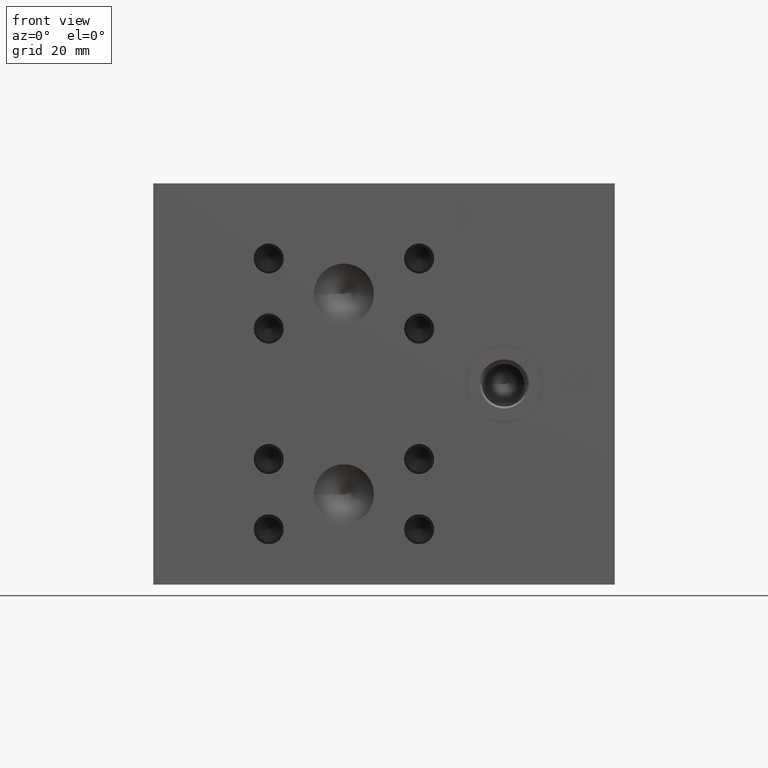
[diagram: clean part render]
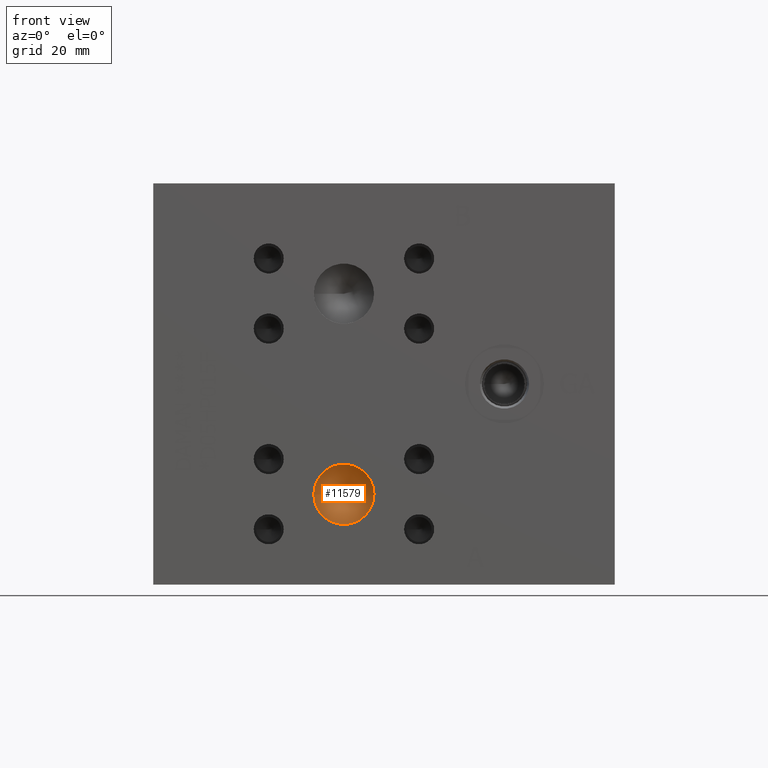
[diagram: same view with one face highlighted and labeled with its STEP entity id]
A machine part, front view. The second image highlights one B-rep face of the part: STEP entity #11579.
In plain terms, the highlighted conical surface has half-angle 60 deg.
Its self-contained STEP definition (entity closure, byte-faithful):
#130=CONICAL_SURFACE('',#12307,4.7625,1.0471975511966);
#376=CIRCLE('',#12308,9.525);
#377=CIRCLE('',#12309,9.525);
#1455=FACE_OUTER_BOUND('',#2156,.T.);
#2156=EDGE_LOOP('',(#10306,#10307,#10308,#10309));
#3248=LINE('',#19680,#4320);
#4320=VECTOR('',#14803,4.7625);
#5643=VERTEX_POINT('',#19676);
#5644=VERTEX_POINT('',#19677);
#5645=VERTEX_POINT('',#19679);
#7221=EDGE_CURVE('',#5643,#5644,#376,.T.);
#7222=EDGE_CURVE('',#5644,#5645,#3248,.T.);
#7223=EDGE_CURVE('',#5644,#5643,#377,.T.);
#10306=ORIENTED_EDGE('',*,*,#7221,.T.);
#10307=ORIENTED_EDGE('',*,*,#7222,.T.);
#10308=ORIENTED_EDGE('',*,*,#7222,.F.);
#10309=ORIENTED_EDGE('',*,*,#7223,.T.);
#11579=ADVANCED_FACE('',(#1455),#130,.F.);
#12307=AXIS2_PLACEMENT_3D('',#19675,#14799,#14800);
#12308=AXIS2_PLACEMENT_3D('',#19678,#14801,#14802);
#12309=AXIS2_PLACEMENT_3D('',#19681,#14804,#14805);
#14799=DIRECTION('center_axis',(0.,-1.,0.));
#14800=DIRECTION('ref_axis',(1.,0.,0.));
#14801=DIRECTION('center_axis',(0.,-1.,0.));
#14802=DIRECTION('ref_axis',(1.,0.,0.));
#14803=DIRECTION('',(0.866025403784439,0.5,1.06057523872491E-16));
#14804=DIRECTION('center_axis',(0.,-1.,0.));
#14805=DIRECTION('ref_axis',(1.,0.,0.));
#19675=CARTESIAN_POINT('Origin',(60.325,8.24889065701559,28.575));
#19676=CARTESIAN_POINT('',(69.85,5.49926,28.575));
#19677=CARTESIAN_POINT('',(50.8,5.49926,28.575));
#19678=CARTESIAN_POINT('Origin',(60.325,5.49926,28.575));
#19679=CARTESIAN_POINT('',(60.325,10.9985213140312,28.575));
#19680=CARTESIAN_POINT('',(55.5625,8.24889065701559,28.575));
#19681=CARTESIAN_POINT('Origin',(60.325,5.49926,28.575));